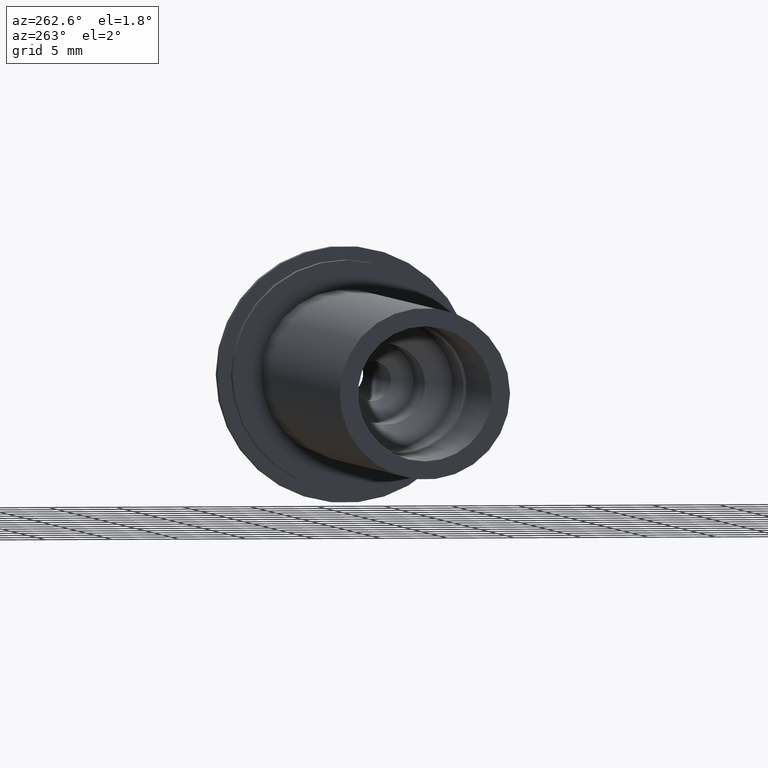
[diagram: clean part render]
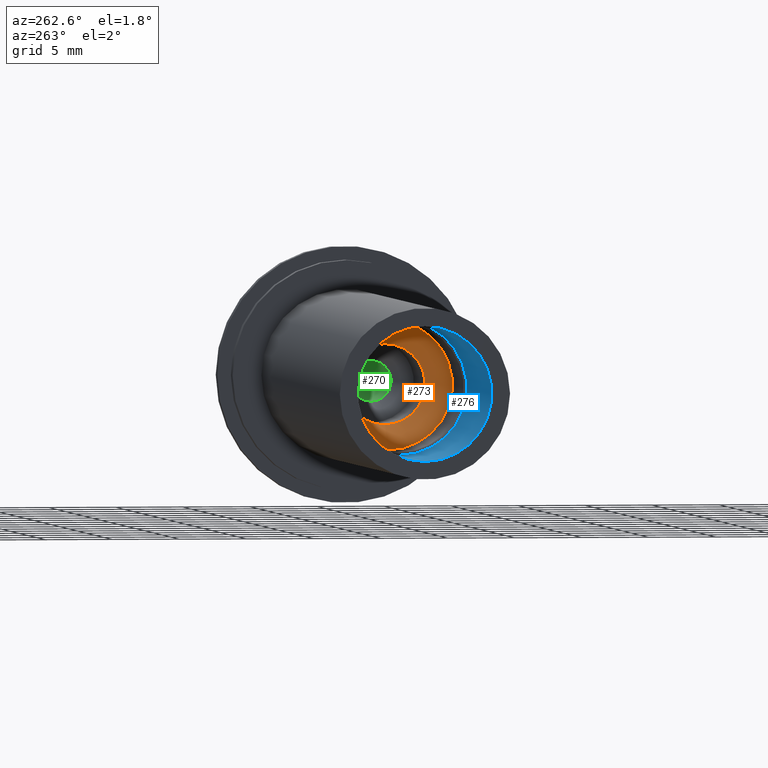
[diagram: same view with three faces highlighted in distinct colors, each labeled with its STEP entity id]
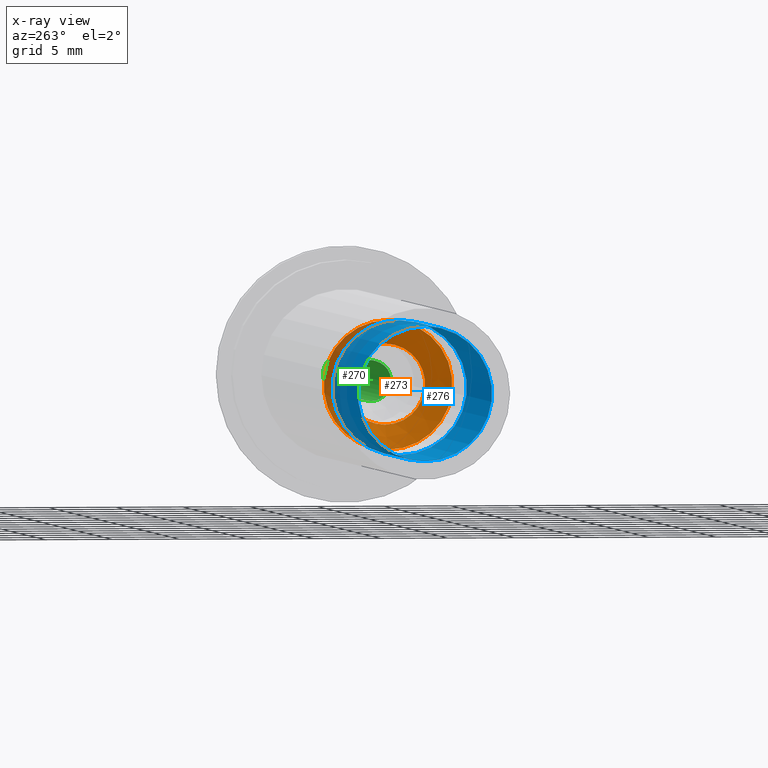
[diagram: x-ray of the same camera — body ghosted, the three highlighted faces saturated]
A machine part, auxiliary view with three faces highlighted in distinct colors.
The next image is the same camera in x-ray (body ghosted, the three faces saturated) — at least one of them is partly hidden behind the body in this view.
Their STEP definitions:

[orange] entity #273 — the highlighted conical surface has half-angle 45 deg.
#100=CONICAL_SURFACE('',#315,2.4,0.785398163397448);
#105=FACE_OUTER_BOUND('',#119,.T.);
#119=EDGE_LOOP('',(#227,#228,#229,#230));
#137=LINE('',#477,#147);
#147=VECTOR('',#378,2.4);
#158=CIRCLE('',#314,3.);
#159=CIRCLE('',#316,4.8);
#177=VERTEX_POINT('',#471);
#178=VERTEX_POINT('',#475);
#194=EDGE_CURVE('',#177,#177,#158,.T.);
#196=EDGE_CURVE('',#178,#178,#159,.T.);
#197=EDGE_CURVE('',#178,#177,#137,.T.);
#227=ORIENTED_EDGE('',*,*,#196,.T.);
#228=ORIENTED_EDGE('',*,*,#197,.T.);
#229=ORIENTED_EDGE('',*,*,#194,.T.);
#230=ORIENTED_EDGE('',*,*,#197,.F.);
#273=ADVANCED_FACE('',(#105),#100,.F.);
#314=AXIS2_PLACEMENT_3D('',#472,#371,#372);
#315=AXIS2_PLACEMENT_3D('',#474,#374,#375);
#316=AXIS2_PLACEMENT_3D('',#476,#376,#377);
#371=DIRECTION('center_axis',(1.,0.,0.));
#372=DIRECTION('ref_axis',(0.,0.,1.));
#374=DIRECTION('center_axis',(-1.,0.,0.));
#375=DIRECTION('ref_axis',(0.,0.,1.));
#376=DIRECTION('center_axis',(-1.,0.,0.));
#377=DIRECTION('ref_axis',(0.,0.,1.));
#378=DIRECTION('',(0.707106781186548,8.65956056235493E-17,0.707106781186547));
#471=CARTESIAN_POINT('',(-24.,3.67394039744206E-16,-3.));
#472=CARTESIAN_POINT('Origin',(-24.,0.,0.));
#474=CARTESIAN_POINT('Origin',(-23.4,0.,0.));
#475=CARTESIAN_POINT('',(-25.8,-5.8783046359073E-16,-4.8));
#476=CARTESIAN_POINT('Origin',(-25.8,0.,0.));
#477=CARTESIAN_POINT('',(-23.4,-2.93915231795365E-16,-2.4));

[blue] entity #276 — the highlighted cylindrical surface (bore or boss wall) has radius 5 mm, axis along (-1, 0, 0).
#108=FACE_OUTER_BOUND('',#122,.T.);
#122=EDGE_LOOP('',(#239,#240,#241,#242));
#140=LINE('',#489,#150);
#150=VECTOR('',#393,5.);
#161=CIRCLE('',#320,5.);
#162=CIRCLE('',#322,5.);
#180=VERTEX_POINT('',#483);
#181=VERTEX_POINT('',#487);
#200=EDGE_CURVE('',#180,#180,#161,.T.);
#202=EDGE_CURVE('',#181,#181,#162,.T.);
#203=EDGE_CURVE('',#181,#180,#140,.T.);
#239=ORIENTED_EDGE('',*,*,#202,.F.);
#240=ORIENTED_EDGE('',*,*,#203,.T.);
#241=ORIENTED_EDGE('',*,*,#200,.F.);
#242=ORIENTED_EDGE('',*,*,#203,.F.);
#266=CYLINDRICAL_SURFACE('',#321,5.);
#276=ADVANCED_FACE('',(#108),#266,.F.);
#320=AXIS2_PLACEMENT_3D('',#484,#386,#387);
#321=AXIS2_PLACEMENT_3D('',#486,#389,#390);
#322=AXIS2_PLACEMENT_3D('',#488,#391,#392);
#386=DIRECTION('center_axis',(-1.,0.,0.));
#387=DIRECTION('ref_axis',(0.,0.,1.));
#389=DIRECTION('center_axis',(-1.,0.,0.));
#390=DIRECTION('ref_axis',(0.,0.,1.));
#391=DIRECTION('center_axis',(1.,0.,0.));
#392=DIRECTION('ref_axis',(0.,0.,1.));
#393=DIRECTION('',(1.,0.,0.));
#483=CARTESIAN_POINT('',(-32.5,-6.12323399573677E-16,-5.));
#484=CARTESIAN_POINT('Origin',(-32.5,0.,0.));
#486=CARTESIAN_POINT('Origin',(-39.75,0.,0.));
#487=CARTESIAN_POINT('',(-47.,-6.12323399573677E-16,-5.));
#488=CARTESIAN_POINT('Origin',(-47.,0.,0.));
#489=CARTESIAN_POINT('',(-39.75,-6.12323399573677E-16,-5.));

[green] entity #270 — the highlighted cylindrical surface (bore or boss wall) has radius 1.5 mm, axis along (1, 0, 0).
#102=FACE_OUTER_BOUND('',#116,.T.);
#116=EDGE_LOOP('',(#213,#214,#215,#216,#217));
#134=LINE('',#462,#144);
#144=VECTOR('',#359,1.5);
#154=CIRCLE('',#308,1.5);
#155=CIRCLE('',#309,1.5);
#156=CIRCLE('',#310,1.5);
#173=VERTEX_POINT('',#459);
#174=VERTEX_POINT('',#461);
#175=VERTEX_POINT('',#463);
#188=EDGE_CURVE('',#173,#173,#154,.T.);
#189=EDGE_CURVE('',#173,#174,#134,.T.);
#190=EDGE_CURVE('',#175,#174,#155,.T.);
#191=EDGE_CURVE('',#174,#175,#156,.T.);
#213=ORIENTED_EDGE('',*,*,#188,.F.);
#214=ORIENTED_EDGE('',*,*,#189,.T.);
#215=ORIENTED_EDGE('',*,*,#190,.F.);
#216=ORIENTED_EDGE('',*,*,#191,.F.);
#217=ORIENTED_EDGE('',*,*,#189,.F.);
#263=CYLINDRICAL_SURFACE('',#307,1.5);
#270=ADVANCED_FACE('',(#102),#263,.F.);
#307=AXIS2_PLACEMENT_3D('',#458,#355,#356);
#308=AXIS2_PLACEMENT_3D('',#460,#357,#358);
#309=AXIS2_PLACEMENT_3D('',#464,#360,#361);
#310=AXIS2_PLACEMENT_3D('',#465,#362,#363);
#355=DIRECTION('center_axis',(1.,0.,0.));
#356=DIRECTION('ref_axis',(0.,0.,-1.));
#357=DIRECTION('center_axis',(-1.,0.,0.));
#358=DIRECTION('ref_axis',(0.,0.,-1.));
#359=DIRECTION('',(-1.,0.,0.));
#360=DIRECTION('center_axis',(1.,0.,0.));
#361=DIRECTION('ref_axis',(0.,0.,-1.));
#362=DIRECTION('center_axis',(1.,0.,0.));
#363=DIRECTION('ref_axis',(0.,0.,-1.));
#458=CARTESIAN_POINT('Origin',(-54.1387107345567,0.,0.));
#459=CARTESIAN_POINT('',(1.77635683940025E-14,-1.83697019872103E-16,1.5));
#460=CARTESIAN_POINT('Origin',(1.77635683940025E-14,0.,0.));
#461=CARTESIAN_POINT('',(-16.,-1.83697019872103E-16,1.5));
#462=CARTESIAN_POINT('',(-54.1387107345567,-1.83697019872103E-16,1.5));
#463=CARTESIAN_POINT('',(-16.,-1.83697019872103E-16,-1.5));
#464=CARTESIAN_POINT('Origin',(-16.,0.,0.));
#465=CARTESIAN_POINT('Origin',(-16.,0.,0.));